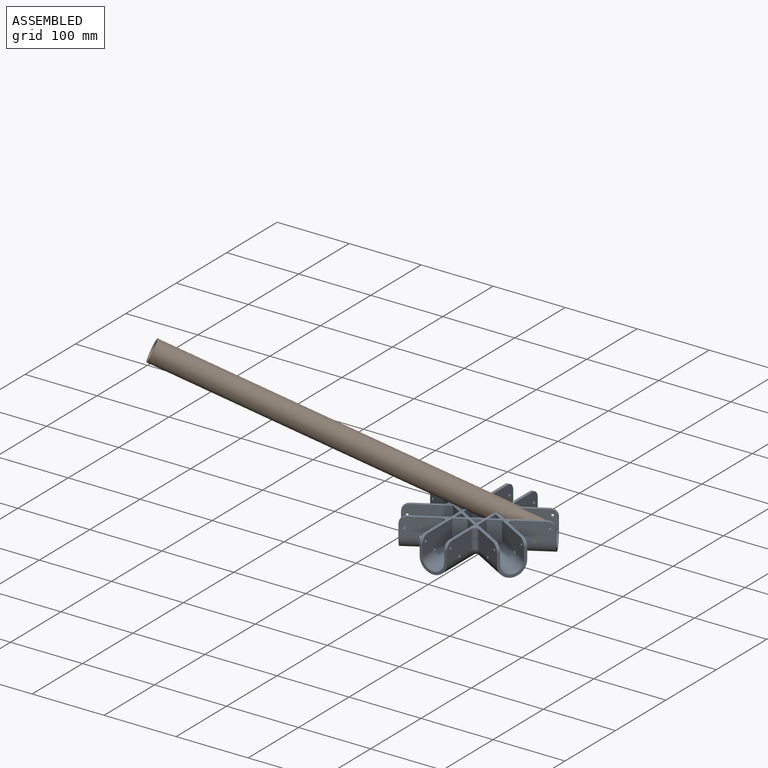
[diagram: assembled view]
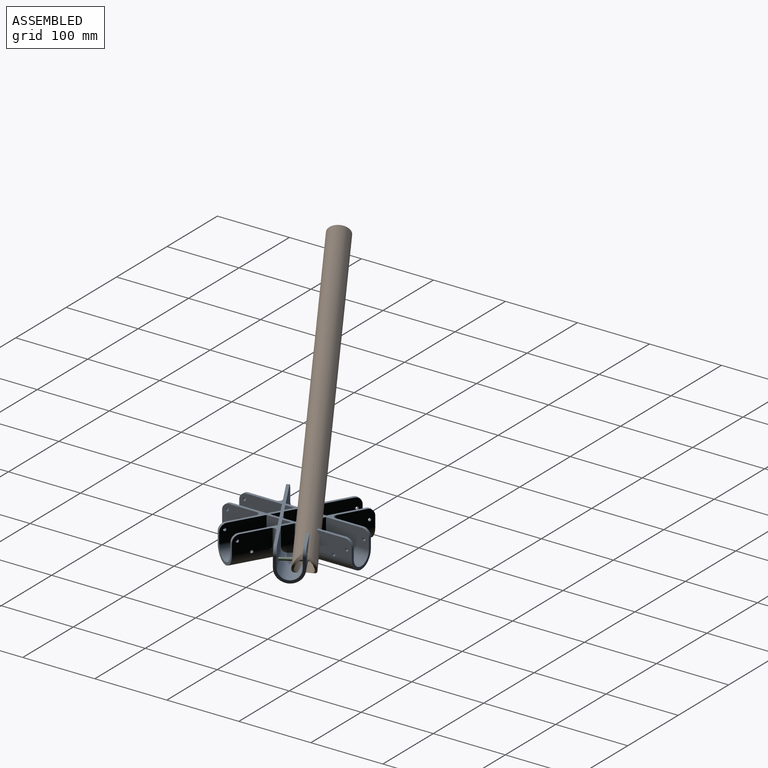
[diagram: assembled view, second angle]
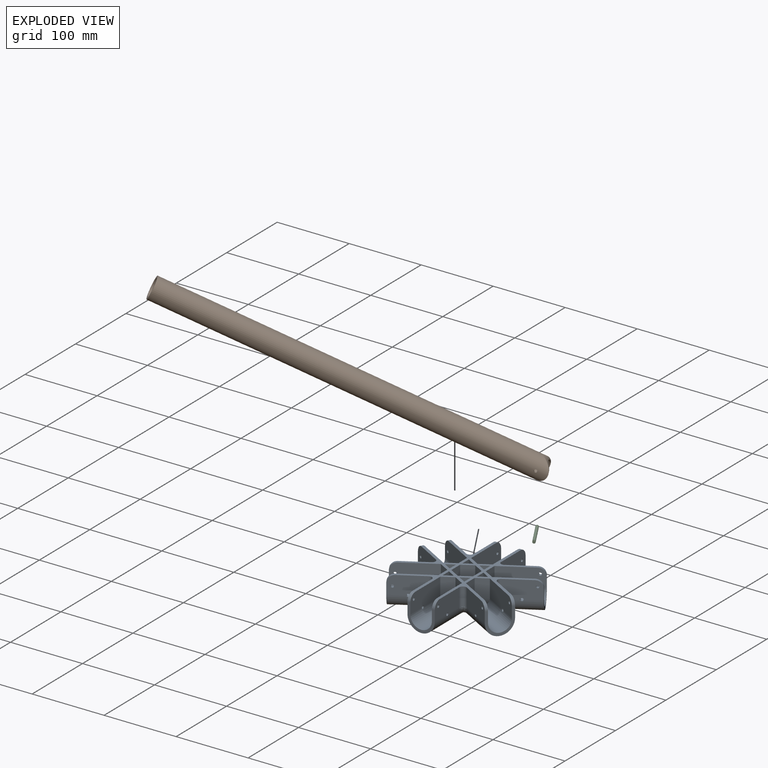
[diagram: exploded view]
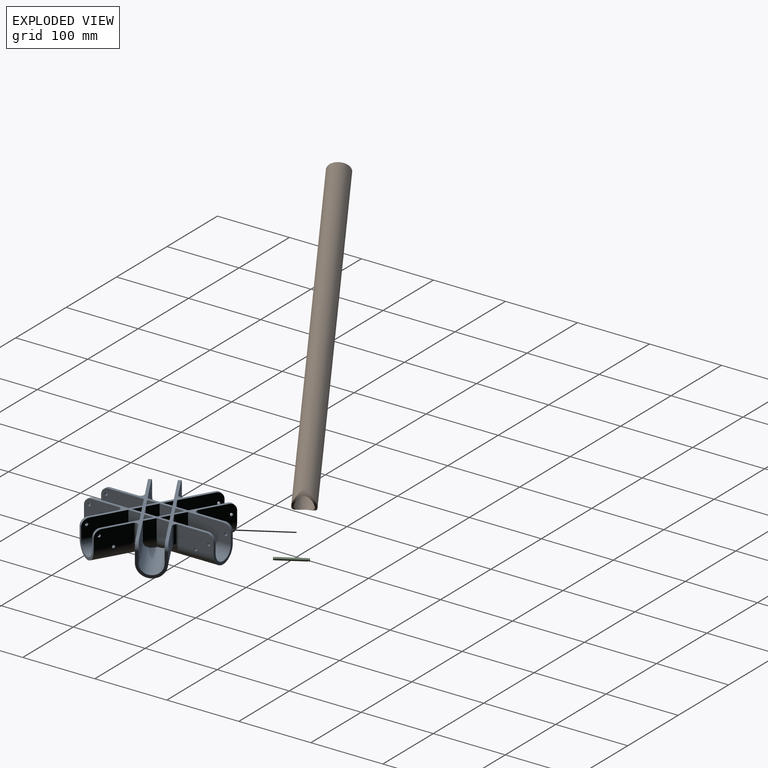
[diagram: exploded view, second angle]
ASSEMBLY  parts=3 mates=3
PART A: 163 faces, bbox 174.9x180x44 mm
  f0: cylinder r=19mm len=90mm, axis (0,1,0), area 3779.9mm2, adj f31,f36,f38,f44,f46,f153,f155
  f1: cylinder r=19mm len=90mm, axis (0,1,0), area 3779.9mm2, adj f8,f28,f37,f43,f45,f151,f157
  f2: cylinder r=19mm len=21.56mm, axis (0,1,0), area 225.7mm2, adj f27,f83,f84
  f3: cylinder r=19mm len=13.4mm, axis (0,1,0), area 132.4mm2, adj f7,f120,f121
  f4: cylinder r=19mm len=21.56mm, axis (0,1,0), area 225.7mm2, adj f26,f74,f76
  f5: cylinder r=19mm len=21.56mm, axis (0,1,0), area 225.7mm2, adj f9,f119,f122
  f6: cylinder r=19mm len=21.56mm, axis (0,1,0), area 225.7mm2, adj f10,f118,f124
  f7: plane 25x12.7mm, normal (1,0,0), area 317.5mm2, adj f3,f35,f126,f138
  f8: plane 48.43x25mm, normal (1,0,0), area 1170.5mm2, adj f1,f35,f37,f41,f45,f50,f152
  f9: plane 25x17.32mm, normal (1,0,0), area 433mm2, adj f5,f35,f129,f139
  f10: plane 25x17.32mm, normal (1,0,0), area 433mm2, adj f6,f35,f125,f141
  f11: plane 25x17.32mm, normal (-1,0,0), area 433mm2, adj f18,f35,f100,f108
  f12: plane 59.4x25mm, normal (-1,0,0), area 1444.7mm2, adj f16,f35,f37,f41,f45,f50,f116
  f13: plane 25x12.7mm, normal (-1,0,0), area 317.5mm2, adj f19,f35,f111,f112
  f14: plane 25x12.7mm, normal (-1,0,0), area 317.5mm2, adj f21,f35,f95,f96
  f15: cylinder r=15mm len=14.32mm, axis (0,1,0), area 140.4mm2, adj f23,f103,f104
  f16: cylinder r=15mm len=76.53mm, axis (0,1,0), area 3122.6mm2, adj f12,f24,f37,f43,f45,f114,f115
  f17: cylinder r=15mm len=17.32mm, axis (0,1,0), area 259.8mm2, adj f25,f98,f107
  f18: cylinder r=15mm len=17.32mm, axis (0,1,0), area 259.8mm2, adj f11,f99,f106
  f19: cylinder r=15mm len=14.32mm, axis (0,1,0), area 140.4mm2, adj f13,f109,f110
  f20: cylinder r=15mm len=76.53mm, axis (0,1,0), area 3122.5mm2, adj f32,f34,f38,f44,f46,f89,f91
  f21: cylinder r=15mm len=14.32mm, axis (0,1,0), area 140.4mm2, adj f14,f93,f94
  f22: plane 25x12.7mm, normal (1,0,0), area 317.5mm2, adj f33,f35,f85,f86
  f23: plane 25x12.7mm, normal (1,0,0), area 317.5mm2, adj f15,f35,f101,f102
  f24: plane 59.4x25mm, normal (1,0,0), area 1444.7mm2, adj f16,f35,f37,f39,f43,f49,f113
  f25: plane 25x17.32mm, normal (1,0,0), area 433mm2, adj f17,f35,f97,f105
  f26: plane 25x17.32mm, normal (-1,0,0), area 433mm2, adj f4,f35,f73,f75
  f27: plane 25x17.32mm, normal (-1,0,0), area 433mm2, adj f2,f35,f81,f82
  f28: plane 48.43x25mm, normal (-1,0,0), area 1170.5mm2, adj f1,f35,f37,f39,f43,f49,f158
  f29: plane 25x12.7mm, normal (-1,0,0), area 317.5mm2, adj f30,f35,f77,f78
  f30: cylinder r=19mm len=13.4mm, axis (0,1,0), area 132.4mm2, adj f29,f79,f80
  f31: plane 48.43x25mm, normal (1,0,0), area 1170.5mm2, adj f0,f35,f38,f42,f46,f48,f154
  f32: plane 59.4x25mm, normal (-1,0,0), area 1444.7mm2, adj f20,f35,f38,f42,f46,f48,f92
  f33: cylinder r=15mm len=14.32mm, axis (0,1,0), area 140.4mm2, adj f22,f87,f88
  f34: plane 59.4x25mm, normal (1,0,0), area 1444.7mm2, adj f20,f35,f38,f40,f44,f47,f90
  f35: plane 160x157.56mm, normal (0,0,1), area 3721mm2, adj f7,f8,f9,f10,f11,f12,f13,f14
  f36: plane 48.43x25mm, normal (-1,0,0), area 1170.5mm2, adj f0,f35,f38,f40,f44,f47,f156
  f37: plane 38x34mm, normal (0,-1,0), area 333.6mm2, adj f1,f8,f12,f16,f24,f28,f49,f50
  f38: plane 38x34mm, normal (0,1,0), area 333.6mm2, adj f0,f20,f31,f32,f34,f36,f47,f48
  f39: cylinder r=2mm len=4mm, axis (-1,0,0), area 50.3mm2, adj f24,f28
  f40: cylinder r=2mm len=4mm, axis (-1,0,0), area 50.3mm2, adj f34,f36
  f41: cylinder r=2mm len=4mm, axis (-1,0,0), area 50.3mm2, adj f8,f12
  f42: cylinder r=2mm len=4mm, axis (-1,0,0), area 50.3mm2, adj f31,f32
  f43: cylinder r=2mm len=4.13mm, axis (-1,0,0), area 50.4mm2, adj f1,f16,f24,f28
  f44: cylinder r=2mm len=4.13mm, axis (-1,0,0), area 50.4mm2, adj f0,f20,f34,f36
  f45: cylinder r=2mm len=4.13mm, axis (-1,0,0), area 50.4mm2, adj f1,f8,f12,f16
  f46: cylinder r=2mm len=4.13mm, axis (-1,0,0), area 50.4mm2, adj f0,f20,f31,f32
  f47: cylinder r=10mm len=10mm, axis (-1,0,0), area 62.8mm2, adj f34,f35,f36,f38
  f48: cylinder r=10mm len=10mm, axis (-1,0,0), area 62.8mm2, adj f31,f32,f35,f38
  f49: cylinder r=10mm len=10mm, axis (1,0,0), area 62.8mm2, adj f24,f28,f35,f37
  f50: cylinder r=10mm len=10mm, axis (1,0,0), area 62.8mm2, adj f8,f12,f35,f37
  f51: cylinder r=2mm len=5.46mm, axis (0.5,-0.87,0), area 50.3mm2, adj f58,f63
  f52: cylinder r=2mm len=5.46mm, axis (-0.5,-0.87,0), area 50.3mm2, adj f55,f68
  f53: cylinder r=10mm len=10.66mm, axis (0.5,-0.87,0), area 62.8mm2, adj f35,f58,f63,f66
  f54: cylinder r=10mm len=10.66mm, axis (-0.5,-0.87,0), area 62.8mm2, adj f35,f55,f60,f68
  f55: plane 41.94x25mm, normal (-0.5,-0.87,0), area 1170.5mm2, adj f35,f52,f54,f56,f60,f72,f162
  f56: cylinder r=2mm len=5.58mm, axis (-0.5,-0.87,0), area 50.4mm2, adj f55,f68,f72,f76
  f57: cylinder r=2mm len=5.58mm, axis (0.5,-0.87,0), area 50.4mm2, adj f58,f63,f70,f83
  f58: plane 41.94x25mm, normal (-0.5,0.87,0), area 1170.5mm2, adj f35,f51,f53,f57,f66,f70,f162
  f59: cylinder r=2mm len=5.58mm, axis (-0.5,-0.87,0), area 50.4mm2, adj f71,f72,f75,f76
  f60: plane 34x32.91mm, normal (-0.87,0.5,0), area 333.6mm2, adj f54,f55,f61,f68,f71,f72,f75,f76
  f61: cylinder r=10mm len=10.66mm, axis (-0.5,-0.87,0), area 62.8mm2, adj f35,f60,f71,f75
  f62: cylinder r=2mm len=5.46mm, axis (-0.5,-0.87,0), area 50.3mm2, adj f71,f75
  f63: plane 51.44x29.7mm, normal (0.5,-0.87,0), area 1444.7mm2, adj f35,f51,f53,f57,f66,f81,f83
  f64: cylinder r=2mm len=5.46mm, axis (0.5,-0.87,0), area 50.3mm2, adj f69,f82
  f65: cylinder r=2mm len=5.58mm, axis (0.5,-0.87,0), area 50.4mm2, adj f69,f70,f82,f83
  f66: plane 34x32.91mm, normal (-0.87,-0.5,0), area 333.6mm2, adj f53,f58,f63,f67,f69,f70,f82,f83
  f67: cylinder r=10mm len=10.66mm, axis (0.5,-0.87,0), area 62.8mm2, adj f35,f66,f69,f82
  f68: plane 51.44x29.7mm, normal (0.5,0.87,0), area 1444.7mm2, adj f35,f52,f54,f56,f60,f73,f76
  f69: plane 41.94x25mm, normal (0.5,-0.87,0), area 1170.5mm2, adj f35,f64,f65,f66,f67,f70,f158
  f70: cylinder r=19mm len=96.94mm, axis (-0.87,-0.5,0), area 3779.9mm2, adj f57,f58,f65,f66,f69,f157,f161
  f71: plane 41.94x25mm, normal (0.5,0.87,0), area 1170.5mm2, adj f35,f59,f60,f61,f62,f72,f156
  f72: cylinder r=19mm len=96.94mm, axis (-0.87,0.5,0), area 3779.9mm2, adj f55,f56,f59,f60,f71,f155,f161
  f73: plane 25x15mm, normal (-0.5,0.87,0), area 433mm2, adj f26,f35,f68,f74
  f74: cylinder r=19mm len=22.34mm, axis (-0.87,-0.5,0), area 225.7mm2, adj f4,f73,f76
  f75: plane 51.44x29.7mm, normal (-0.5,-0.87,0), area 1444.7mm2, adj f26,f35,f59,f60,f61,f62,f76
  f76: cylinder r=15mm len=81.28mm, axis (-0.87,0.5,0), area 3122.5mm2, adj f4,f56,f59,f60,f68,f74,f75
  f77: plane 25x11mm, normal (0.5,-0.87,0), area 317.5mm2, adj f29,f35,f78,f79
  f78: plane 25x11mm, normal (0.5,0.87,0), area 317.5mm2, adj f29,f35,f77,f80
  f79: cylinder r=15mm len=16.53mm, axis (-0.87,-0.5,0), area 140.4mm2, adj f30,f77,f80
  f80: cylinder r=15mm len=16.53mm, axis (-0.87,0.5,0), area 140.4mm2, adj f30,f78,f79
  f81: plane 25x15mm, normal (-0.5,-0.87,0), area 433mm2, adj f27,f35,f63,f84
  f82: plane 51.44x29.7mm, normal (-0.5,0.87,0), area 1444.7mm2, adj f27,f35,f64,f65,f66,f67,f83
  f83: cylinder r=15mm len=81.28mm, axis (-0.87,-0.5,0), area 3122.5mm2, adj f2,f57,f63,f65,f66,f82,f84
  f84: cylinder r=19mm len=22.34mm, axis (-0.87,0.5,0), area 225.7mm2, adj f2,f81,f83
  f85: plane 25x11mm, normal (-0.5,0.87,0), area 317.5mm2, adj f22,f35,f86,f87
  f86: plane 25x11mm, normal (-0.5,-0.87,0), area 317.5mm2, adj f22,f35,f85,f88
  f87: cylinder r=19mm len=13.77mm, axis (-0.87,-0.5,0), area 132.4mm2, adj f33,f85,f88
  f88: cylinder r=15mm len=16.53mm, axis (-0.87,0.5,0), area 140.4mm2, adj f33,f86,f87
  f89: cylinder r=19mm len=22.34mm, axis (-0.87,-0.5,0), area 225.7mm2, adj f20,f91,f92
  f90: plane 25x15mm, normal (0.5,0.87,0), area 433mm2, adj f34,f35,f91,f92
  f91: cylinder r=19mm len=22.34mm, axis (-0.87,0.5,0), area 225.7mm2, adj f20,f89,f90
  f92: plane 25x15mm, normal (-0.5,0.87,0), area 433mm2, adj f32,f35,f89,f90
  f93: cylinder r=15mm len=16.53mm, axis (-0.87,-0.5,0), area 140.4mm2, adj f21,f94,f95
  f94: cylinder r=19mm len=13.77mm, axis (-0.87,0.5,0), area 132.4mm2, adj f21,f93,f96
  f95: plane 25x11mm, normal (0.5,-0.87,0), area 317.5mm2, adj f14,f35,f93,f96
  f96: plane 25x11mm, normal (0.5,0.87,0), area 317.5mm2, adj f14,f35,f94,f95
  f97: plane 25x15mm, normal (0.5,-0.87,0), area 433mm2, adj f25,f35,f98,f100
  f98: cylinder r=15mm len=22.5mm, axis (-0.87,-0.5,0), area 259.8mm2, adj f17,f97,f99
  f99: cylinder r=15mm len=22.5mm, axis (-0.87,0.5,0), area 259.8mm2, adj f18,f98,f100
  f100: plane 25x15mm, normal (-0.5,-0.87,0), area 433mm2, adj f11,f35,f97,f99
  f101: plane 25x11mm, normal (-0.5,0.87,0), area 317.5mm2, adj f23,f35,f102,f103
  f102: plane 25x11mm, normal (-0.5,-0.87,0), area 317.5mm2, adj f23,f35,f101,f104
  f103: cylinder r=15mm len=16.53mm, axis (-0.87,-0.5,0), area 140.4mm2, adj f15,f101,f104
  f104: cylinder r=19mm len=13.77mm, axis (-0.87,0.5,0), area 132.4mm2, adj f15,f102,f103
  f105: plane 25x15mm, normal (0.5,0.87,0), area 433mm2, adj f25,f35,f107,f108
  f106: cylinder r=15mm len=22.5mm, axis (-0.87,-0.5,0), area 259.8mm2, adj f18,f107,f108
  f107: cylinder r=15mm len=22.5mm, axis (-0.87,0.5,0), area 259.8mm2, adj f17,f105,f106
  f108: plane 25x15mm, normal (-0.5,0.87,0), area 433mm2, adj f11,f35,f105,f106
  f109: cylinder r=19mm len=13.77mm, axis (-0.87,-0.5,0), area 132.4mm2, adj f19,f110,f111
  f110: cylinder r=15mm len=16.53mm, axis (-0.87,0.5,0), area 140.4mm2, adj f19,f109,f112
  f111: plane 25x11mm, normal (0.5,-0.87,0), area 317.5mm2, adj f13,f35,f109,f112
  f112: plane 25x11mm, normal (0.5,0.87,0), area 317.5mm2, adj f13,f35,f110,f111
  f113: plane 25x15mm, normal (0.5,-0.87,0), area 433mm2, adj f24,f35,f114,f116
  f114: cylinder r=19mm len=22.34mm, axis (-0.87,-0.5,0), area 225.7mm2, adj f16,f113,f115
  f115: cylinder r=19mm len=22.34mm, axis (-0.87,0.5,0), area 225.7mm2, adj f16,f114,f116
  f116: plane 25x15mm, normal (-0.5,-0.87,0), area 433mm2, adj f12,f35,f113,f115
  f117: cylinder r=19mm len=96.94mm, axis (-0.87,0.5,0), area 3779.9mm2, adj f127,f130,f131,f134,f135,f151,f159
  f118: cylinder r=19mm len=22.34mm, axis (-0.87,0.5,0), area 225.7mm2, adj f6,f124,f125
  f119: cylinder r=15mm len=81.28mm, axis (-0.87,0.5,0), area 3122.5mm2, adj f5,f122,f128,f129,f131,f134,f135
  f120: cylinder r=15mm len=16.53mm, axis (-0.87,0.5,0), area 140.4mm2, adj f3,f121,f126
  f121: cylinder r=15mm len=16.53mm, axis (-0.87,-0.5,0), area 140.4mm2, adj f3,f120,f138
  f122: cylinder r=19mm len=22.34mm, axis (-0.87,-0.5,0), area 225.7mm2, adj f5,f119,f139
  f123: cylinder r=19mm len=96.94mm, axis (-0.87,-0.5,0), area 3779.9mm2, adj f140,f143,f144,f147,f148,f153,f159
  f124: cylinder r=15mm len=81.28mm, axis (-0.87,-0.5,0), area 3122.5mm2, adj f6,f118,f141,f142,f144,f147,f148
  f125: plane 25x15mm, normal (0.5,0.87,0), area 433mm2, adj f10,f35,f118,f142
  f126: plane 25x11mm, normal (-0.5,-0.87,0), area 317.5mm2, adj f7,f35,f120,f138
  f127: plane 41.94x25mm, normal (0.5,0.87,0), area 1170.5mm2, adj f35,f117,f131,f133,f135,f137,f160
  f128: plane 51.44x29.7mm, normal (-0.5,-0.87,0), area 1444.7mm2, adj f35,f119,f131,f133,f135,f137,f139
  f129: plane 51.44x29.7mm, normal (0.5,0.87,0), area 1444.7mm2, adj f9,f35,f119,f131,f132,f134,f136
  f130: plane 41.94x25mm, normal (-0.5,-0.87,0), area 1170.5mm2, adj f35,f117,f131,f132,f134,f136,f152
  f131: plane 34x32.91mm, normal (0.87,-0.5,0), area 333.6mm2, adj f117,f119,f127,f128,f129,f130,f136,f137
  f132: cylinder r=2mm len=5.46mm, axis (-0.5,-0.87,0), area 50.3mm2, adj f129,f130
  f133: cylinder r=2mm len=5.46mm, axis (-0.5,-0.87,0), area 50.3mm2, adj f127,f128
  f134: cylinder r=2mm len=5.58mm, axis (-0.5,-0.87,0), area 50.4mm2, adj f117,f119,f129,f130
  f135: cylinder r=2mm len=5.58mm, axis (-0.5,-0.87,0), area 50.4mm2, adj f117,f119,f127,f128
  f136: cylinder r=10mm len=10.66mm, axis (0.5,0.87,0), area 62.8mm2, adj f35,f129,f130,f131
  f137: cylinder r=10mm len=10.66mm, axis (0.5,0.87,0), area 62.8mm2, adj f35,f127,f128,f131
  f138: plane 25x11mm, normal (-0.5,0.87,0), area 317.5mm2, adj f7,f35,f121,f126
  f139: plane 25x15mm, normal (0.5,-0.87,0), area 433mm2, adj f9,f35,f122,f128
  f140: plane 41.94x25mm, normal (-0.5,0.87,0), area 1170.5mm2, adj f35,f123,f144,f146,f148,f150,f154
  f141: plane 51.44x29.7mm, normal (0.5,-0.87,0), area 1444.7mm2, adj f10,f35,f124,f144,f146,f148,f150
  f142: plane 51.44x29.7mm, normal (-0.5,0.87,0), area 1444.7mm2, adj f35,f124,f125,f144,f145,f147,f149
  f143: plane 41.94x25mm, normal (0.5,-0.87,0), area 1170.5mm2, adj f35,f123,f144,f145,f147,f149,f160
  f144: plane 34x32.91mm, normal (0.87,0.5,0), area 333.6mm2, adj f123,f124,f140,f141,f142,f143,f149,f150
  f145: cylinder r=2mm len=5.46mm, axis (0.5,-0.87,0), area 50.3mm2, adj f142,f143
  f146: cylinder r=2mm len=5.46mm, axis (0.5,-0.87,0), area 50.3mm2, adj f140,f141
  f147: cylinder r=2mm len=5.58mm, axis (0.5,-0.87,0), area 50.4mm2, adj f123,f124,f142,f143
  f148: cylinder r=2mm len=5.58mm, axis (0.5,-0.87,0), area 50.4mm2, adj f123,f124,f140,f141
  f149: cylinder r=10mm len=10.66mm, axis (-0.5,0.87,0), area 62.8mm2, adj f35,f142,f143,f144
  f150: cylinder r=10mm len=10.66mm, axis (-0.5,0.87,0), area 62.8mm2, adj f35,f140,f141,f144
  f151: bspline ~41.57x26.5mm, area 265.5mm2, adj f1,f117,f152
  f152: cylinder r=5mm len=25mm, axis (0,0,1), area 261.8mm2, adj f8,f35,f130,f151
  f153: bspline ~41.57x26.5mm, area 265.5mm2, adj f0,f123,f154
  f154: cylinder r=5mm len=25mm, axis (0,0,-1), area 261.8mm2, adj f31,f35,f140,f153
  f155: bspline ~41.57x26.5mm, area 265.5mm2, adj f0,f72,f156
  f156: cylinder r=5mm len=25mm, axis (0,0,1), area 261.8mm2, adj f35,f36,f71,f155
  f157: bspline ~41.57x26.5mm, area 265.5mm2, adj f1,f70,f158
  f158: cylinder r=5mm len=25mm, axis (0,0,-1), area 261.8mm2, adj f28,f35,f69,f157
  f159: bspline ~45.5x19.62mm, area 265.5mm2, adj f117,f123,f160
  f160: cylinder r=5mm len=25mm, axis (0,0,1), area 261.8mm2, adj f35,f127,f143,f159
  f161: bspline ~45.5x21.48mm, area 265.5mm2, adj f70,f72,f162
  f162: cylinder r=5mm len=25mm, axis (0,0,1), area 261.8mm2, adj f35,f55,f58,f161
PART B: 6 faces, bbox 30.1x500.1x30 mm
  f0: cylinder r=12mm len=500mm, axis (0,-1,0), area 37462.2mm2, adj f2,f3,f4,f5
  f1: cylinder r=15mm len=500.05mm, axis (0,-1,0), area 46585mm2, adj f2,f3,f4,f5
  f2: plane 30x30mm, normal (0,1,0), area 254.5mm2, adj f0,f1
  f3: cylinder r=15mm len=30.1mm, axis (1,0,0), area 397.7mm2, adj f0,f1
  f4: cylinder r=2mm len=4mm, axis (1,0,0), area 37.9mm2, adj f0,f1
  f5: cylinder r=2mm len=4mm, axis (1,0,0), area 37.9mm2, adj f0,f1
PART C: 11 faces, bbox 4x42x4 mm
  f0: cylinder r=2mm len=4mm, axis (0,1,0), area 12.6mm2, adj f1,f2
  f1: plane 4x4mm, normal (0,-1,0), area 12.6mm2, adj f0
  f2: plane 4x4mm, normal (0,1,0), area 5.5mm2, adj f0,f4
  f3: plane 4x4mm, normal (0,-1,0), area 5.5mm2, adj f4,f5
  f4: cylinder r=1.5mm len=3mm, axis (0,1,0), area 9.4mm2, adj f2,f3
  f5: cylinder r=2mm len=38mm, axis (0,1,0), area 477.5mm2, adj f3,f6
  f6: plane 4x4mm, normal (0,1,0), area 5.5mm2, adj f5,f8
  f7: plane 4x4mm, normal (0,-1,0), area 5.5mm2, adj f8,f10
  f8: cylinder r=1.5mm len=3mm, axis (0,1,0), area 9.4mm2, adj f6,f7
  f9: plane 4x4mm, normal (0,1,0), area 12.6mm2, adj f10
  f10: cylinder r=2mm len=4mm, axis (0,1,0), area 12.6mm2, adj f7,f9
PLACE A at identity fixed
PLACE B rot(axis=(0.86,-0.5,-0.11),158.3deg) t=(60.12,53.04,-6.36)mm
PLACE C rot(axis=(0,0,1),30deg) t=(45.79,50.69,0)mm
MATE cylindrical C.f0 <-> B.f3  axis (-0.5,0.87,0) through (56.29,32.5,0)mm
MATE cylindrical C.f0 <-> A.f147  axis (-0.5,0.87,0) through (56.29,32.5,0)mm
MATE planar A.f143 <-> C.f0  axis (0.5,-0.87,0) through (65.97,16.15,12.33)mm
